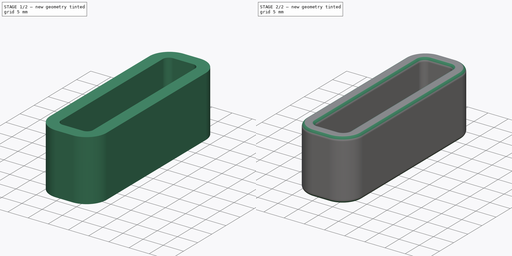
[diagram: build sequence overview — one tinted view per stage of 2, left to right]
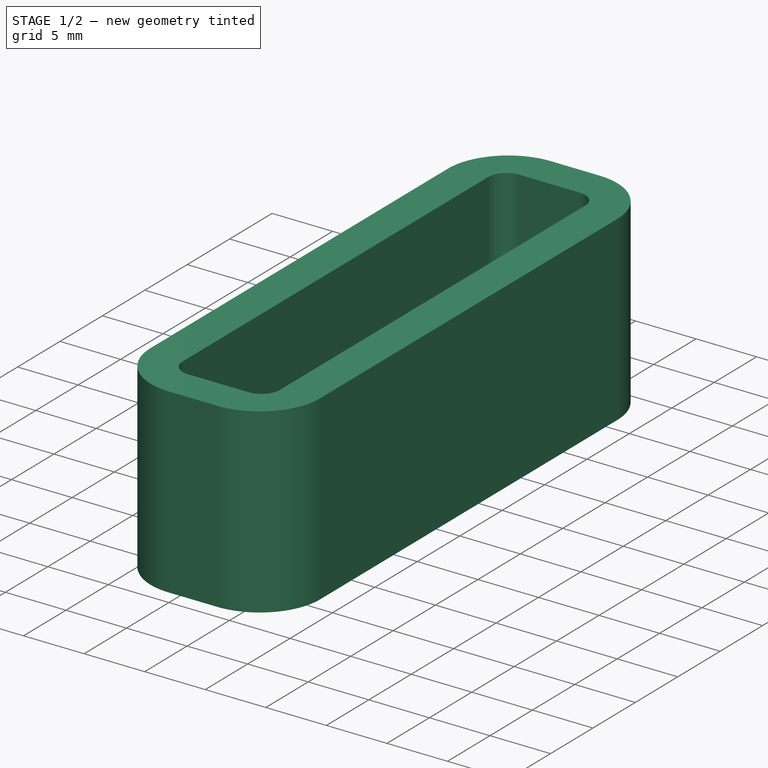
[diagram: stage 1 of 2 — iso view after this stage's code; geometry added in this stage tinted green]
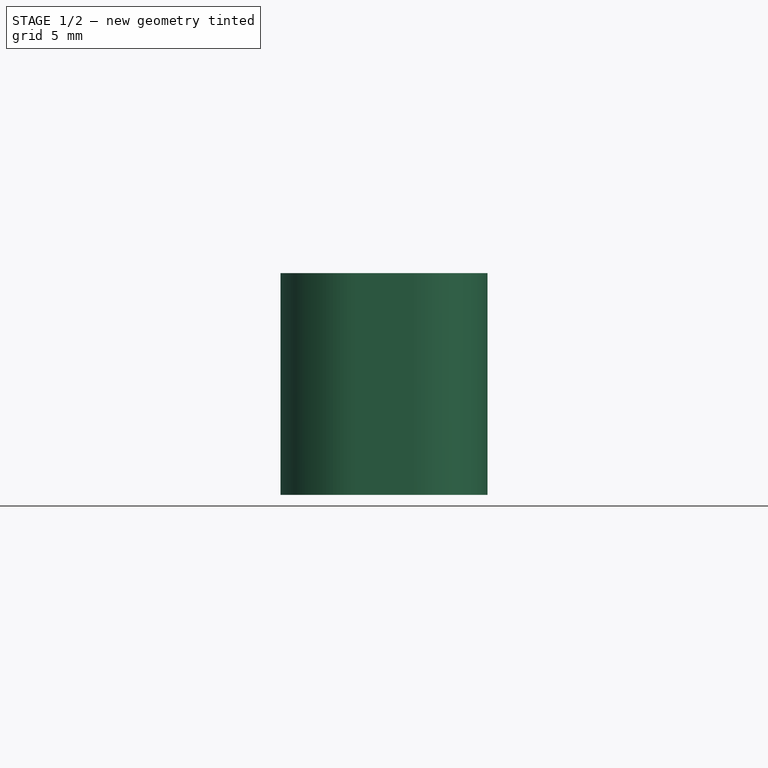
[diagram: stage 1 of 2 — front view after this stage's code; geometry added in this stage tinted green]
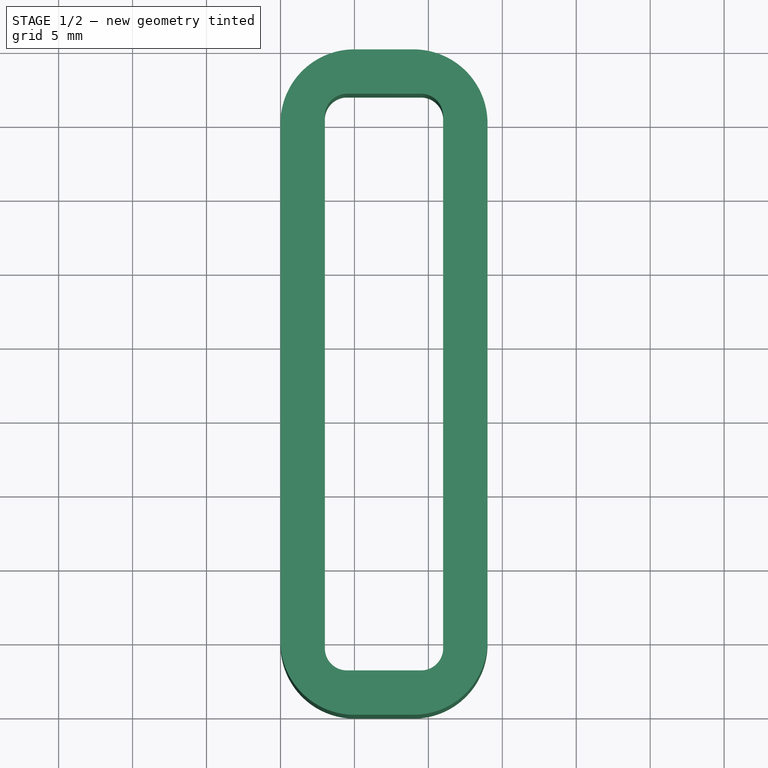
[diagram: stage 1 of 2 — top view after this stage's code; geometry added in this stage tinted green]
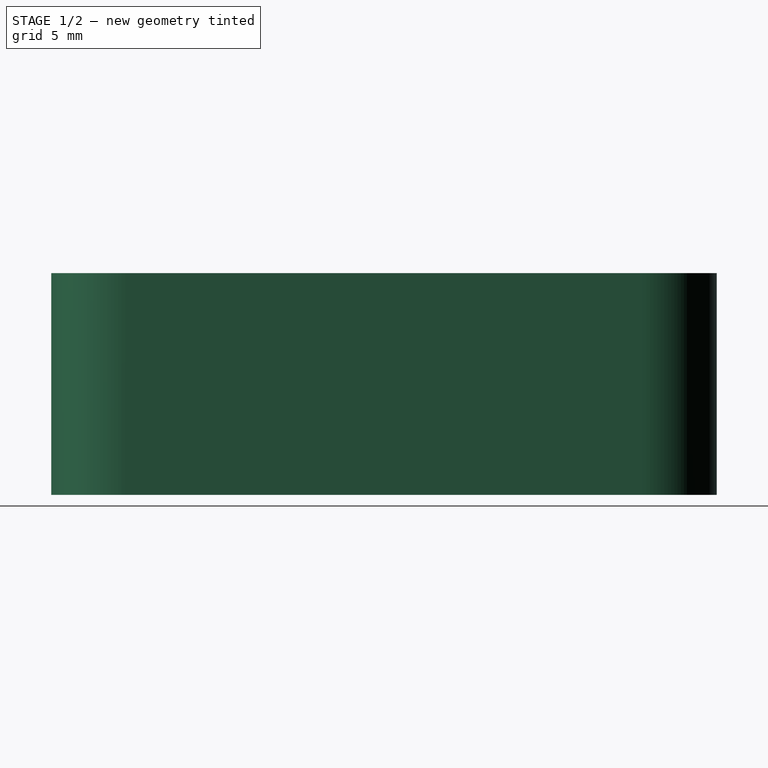
[diagram: stage 1 of 2 — right view after this stage's code; geometry added in this stage tinted green]
FCSTD DOCUMENT  (FreeCAD 1.0RUnknown)
Label: Belt-holder
License: All rights reserved
LicenseURL: https://en.wikipedia.org/wiki/All_rights_reserved
objects: Sketcher::SketchObject×1, PartDesign::Pad×1, PartDesign::Fillet×1, PartDesign::Body×1
note: 9 computed .brp shape members not serialized (recipe doc carries the construction recipe); baked Part::Feature solids carry a one-line shape summary decoded from their .brp

FEATURE [Sketcher::SketchObject] Sketch
  ArcFitTolerance = 1e-06
  AttachmentSupport = -> [XY_Plane]
  FullyConstrained = true
  MakeInternals = false
  MapMode = 5
  sketch-geometry (24):
    g0: LineSegment StartX=5 StartY=0 StartZ=0 EndX=9 EndY=0 EndZ=0
    g1: LineSegment StartX=14 StartY=5 StartZ=0 EndX=14 EndY=40 EndZ=0
    g2: LineSegment StartX=9 StartY=45 StartZ=0 EndX=5 EndY=45 EndZ=0
    g3: LineSegment StartX=0 StartY=40 StartZ=0 EndX=0 EndY=5 EndZ=0
    g4: LineSegment StartX=4.5 StartY=3 StartZ=0 EndX=9.5 EndY=3 EndZ=0
    g5: LineSegment StartX=11 StartY=4.5 StartZ=0 EndX=11 EndY=40.5 EndZ=0
    g6: LineSegment StartX=9.5 StartY=42 StartZ=0 EndX=4.5 EndY=42 EndZ=0
    g7: LineSegment StartX=3 StartY=40.5 StartZ=0 EndX=3 EndY=4.5 EndZ=0
    g8: ArcOfCircle CenterX=5 CenterY=40 CenterZ=0 NormalX=0 NormalY=0 NormalZ=1 AngleXU=0 Radius=5 StartAngle=1.5708 EndAngle=3.14159
    g9: GeomPoint [constr] X=0 Y=45 Z=0
    g10: ArcOfCircle CenterX=9 CenterY=40 CenterZ=0 NormalX=0 NormalY=0 NormalZ=1 AngleXU=0 Radius=5 StartAngle=1e-16 EndAngle=1.5708
    g11: GeomPoint [constr] X=14 Y=45 Z=0
    g12: ArcOfCircle CenterX=9.5 CenterY=40.5 CenterZ=0 NormalX=0 NormalY=0 NormalZ=1 AngleXU=0 Radius=1.5 StartAngle=-9e-16 EndAngle=1.5708
    g13: GeomPoint [constr] X=11 Y=42 Z=0
    g14: ArcOfCircle CenterX=4.5 CenterY=40.5 CenterZ=0 NormalX=0 NormalY=0 NormalZ=1 AngleXU=0 Radius=1.5 StartAngle=1.5708 EndAngle=3.14159
    g15: GeomPoint [constr] X=3 Y=42 Z=0
    g16: ArcOfCircle CenterX=4.5 CenterY=4.5 CenterZ=0 NormalX=0 NormalY=0 NormalZ=1 AngleXU=0 Radius=1.5 StartAngle=3.14159 EndAngle=4.71239
    g17: GeomPoint [constr] X=3 Y=3 Z=0
    g18: ArcOfCircle CenterX=9.5 CenterY=4.5 CenterZ=0 NormalX=0 NormalY=0 NormalZ=1 AngleXU=0 Radius=1.5 StartAngle=4.71239 EndAngle=6.28319
    g19: GeomPoint [constr] X=11 Y=3 Z=0
    g20: ArcOfCircle CenterX=5 CenterY=5 CenterZ=0 NormalX=0 NormalY=0 NormalZ=1 AngleXU=0 Radius=5 StartAngle=3.14159 EndAngle=4.71239
    g21: GeomPoint [constr] X=0 Y=0 Z=0
    g22: ArcOfCircle CenterX=9 CenterY=5 CenterZ=0 NormalX=0 NormalY=0 NormalZ=1 AngleXU=0 Radius=5 StartAngle=4.71239 EndAngle=6.28319
    g23: GeomPoint [constr] X=14 Y=0 Z=0
  constraints (55):
    c: Horizontal(g0)
    c: Horizontal(g2)
    c: Vertical(g1)
    c: Vertical(g3)
    c: Coincident(g21,g-1)
    c: Horizontal(g4)
    c: Horizontal(g6)
    c: Vertical(g5)
    c: Vertical(g7)
    c: DistanceX(g17,g19) = 8
    c: DistanceY(g17,g15) = 39
    c: Distance(g9,g7) = 3
    c: Distance(g19,g1) = 3
    c: Distance(g21,g4) = 3
    c: Distance(g13,g2) = 3
    c: PointOnObject(g9,g3)
    c: PointOnObject(g9,g2)
    c: Tangent(g3,g8) = -1.5708
    c: Tangent(g2,g8) = -1.5708
    c: PointOnObject(g11,g2)
    c: PointOnObject(g11,g1)
    c: Tangent(g2,g10) = -1.5708
    c: Tangent(g1,g10) = -1.5708
    c: PointOnObject(g13,g6)
    c: PointOnObject(g13,g5)
    c: Tangent(g6,g12) = -1.5708
    c: Tangent(g5,g12) = -1.5708
    c: PointOnObject(g15,g7)
    c: PointOnObject(g15,g6)
    c: Tangent(g7,g14) = -1.5708
    c: Tangent(g6,g14) = -1.5708
    c: PointOnObject(g17,g7)
    c: PointOnObject(g17,g4)
    c: Tangent(g7,g16) = -1.5708
    c: Tangent(g4,g16) = -1.5708
    c: PointOnObject(g19,g5)
    c: PointOnObject(g19,g4)
    c: Tangent(g5,g18) = -1.5708
    c: Tangent(g4,g18) = -1.5708
    c: PointOnObject(g21,g3)
    c: PointOnObject(g21,g0)
    c: Tangent(g3,g20) = -1.5708
    c: Tangent(g0,g20) = -1.5708
    c: Equal(g14,g12)
    c: Equal(g12,g18)
    c: Equal(g18,g16)
    c: Radius(g18) = 1.5
    c: PointOnObject(g23,g1)
    c: PointOnObject(g23,g0)
    c: Tangent(g1,g22) = -1.5708
    c: Tangent(g0,g22) = -1.5708
    c: Equal(g8,g10)
    c: Equal(g10,g22)
    c: Equal(g22,g20)
    c: Radius(g10) = 5
FEATURE [PartDesign::Pad] Pad
  Direction = (0,0,1)
  Length = 15
  Length2 = 10
  Profile = -> Sketch
  ReferenceAxis = -> Sketch [N_Axis]
  Refine = true
  Suppressed = false
  Type = 0
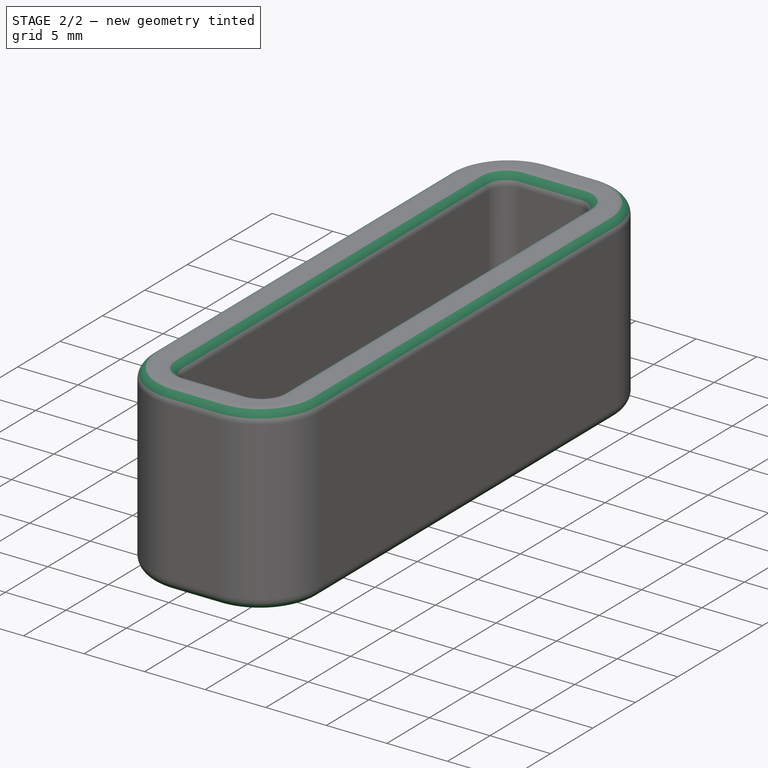
[diagram: stage 2 of 2 — iso view after this stage's code; geometry added in this stage tinted green]
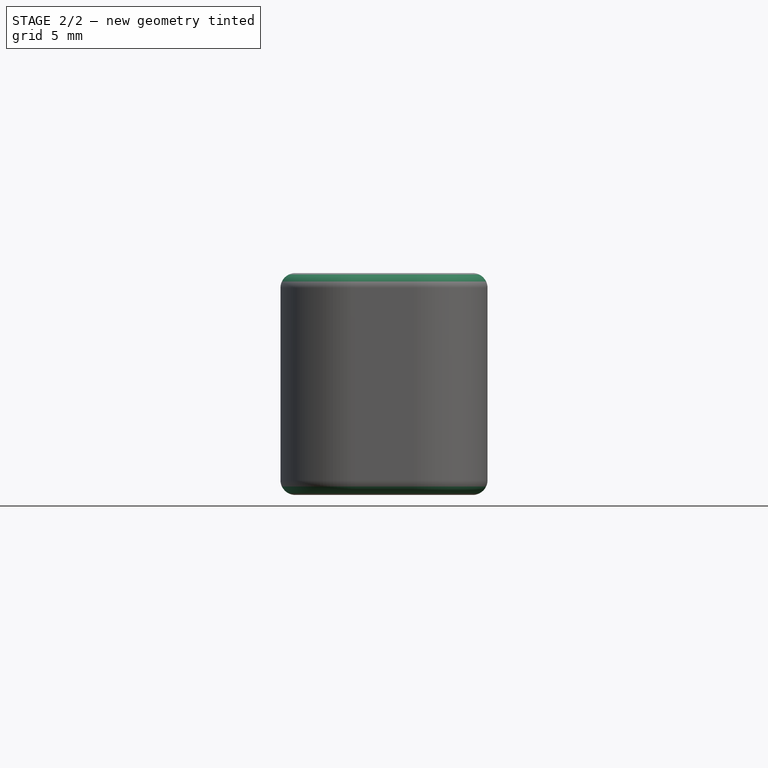
[diagram: stage 2 of 2 — front view after this stage's code; geometry added in this stage tinted green]
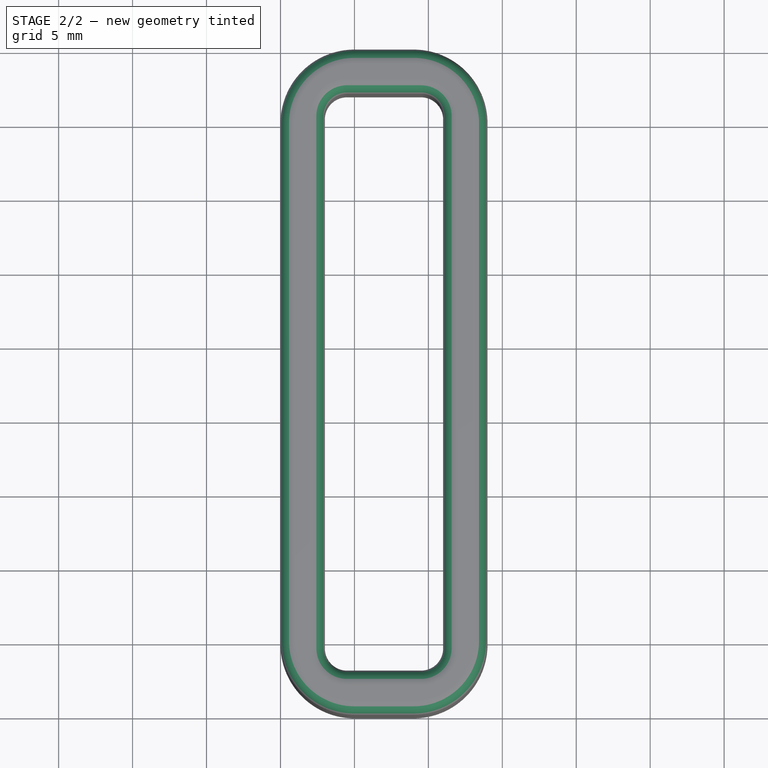
[diagram: stage 2 of 2 — top view after this stage's code; geometry added in this stage tinted green]
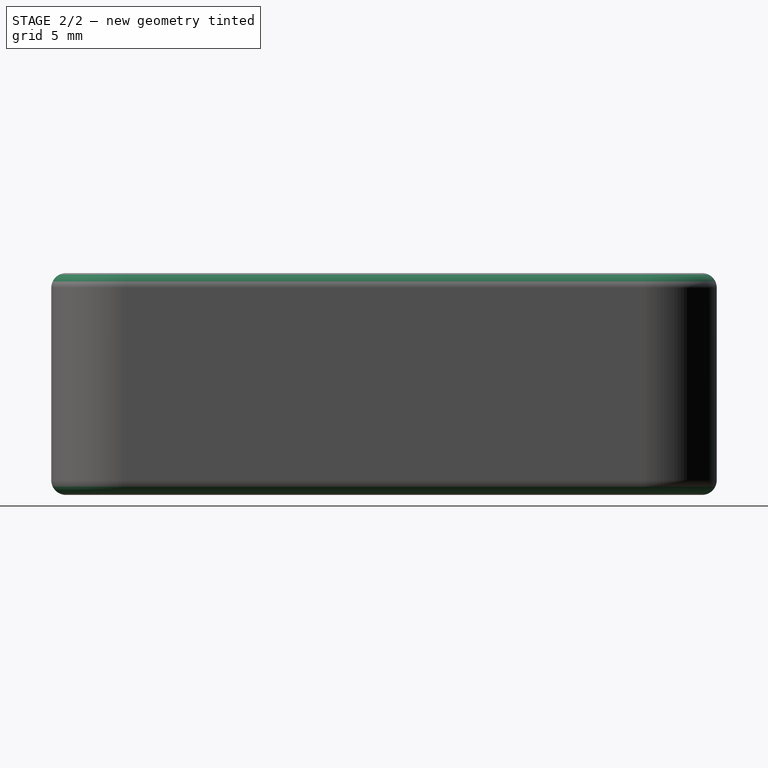
[diagram: stage 2 of 2 — right view after this stage's code; geometry added in this stage tinted green]
FEATURE [PartDesign::Fillet] Fillet
  Base = -> Pad [Edge34,Edge10,Edge9,Edge33]
  BaseFeature = -> Pad
  Radius = 1
  Refine = true
  SupportTransform = false
  Suppressed = false
  UseAllEdges = false
FEATURE [PartDesign::Body] Body
  AllowCompound = false
  Group = -> [Sketch,Pad,Fillet]
  Origin = -> Origin
  Tip = -> Fillet
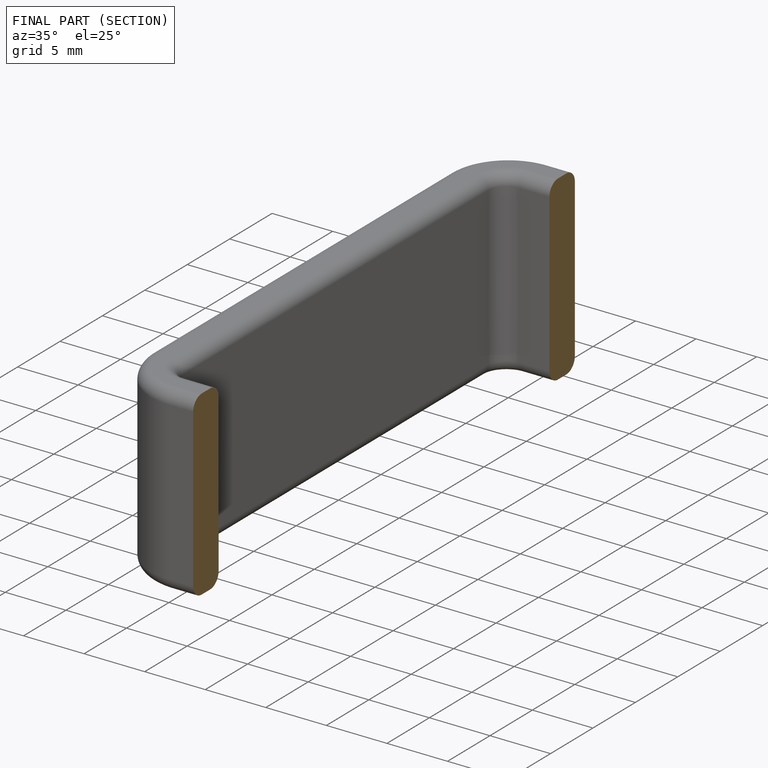
[diagram: finished part — half-section view (interior)]
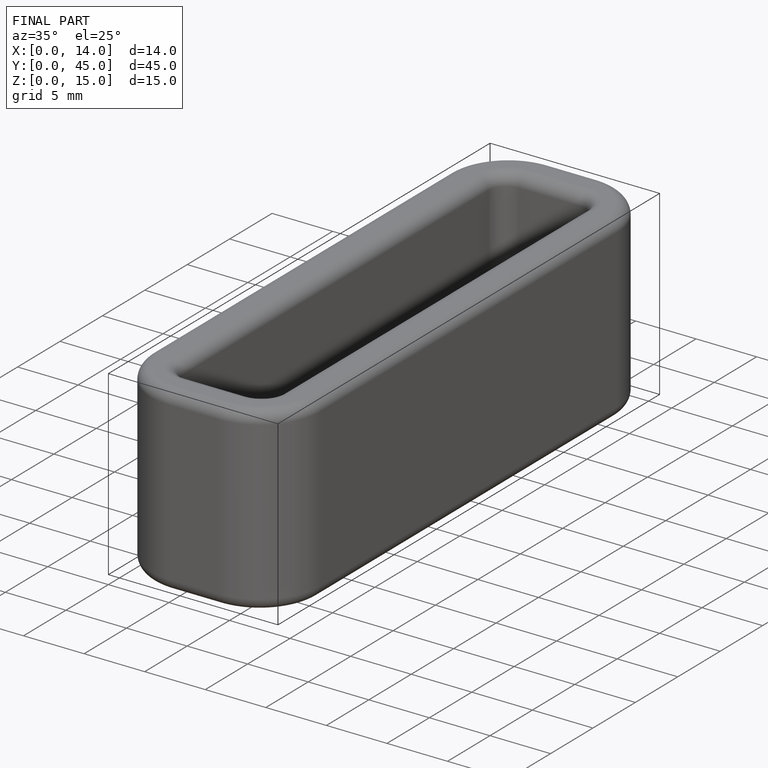
[diagram: finished part — iso view with bounding-box wireframe]
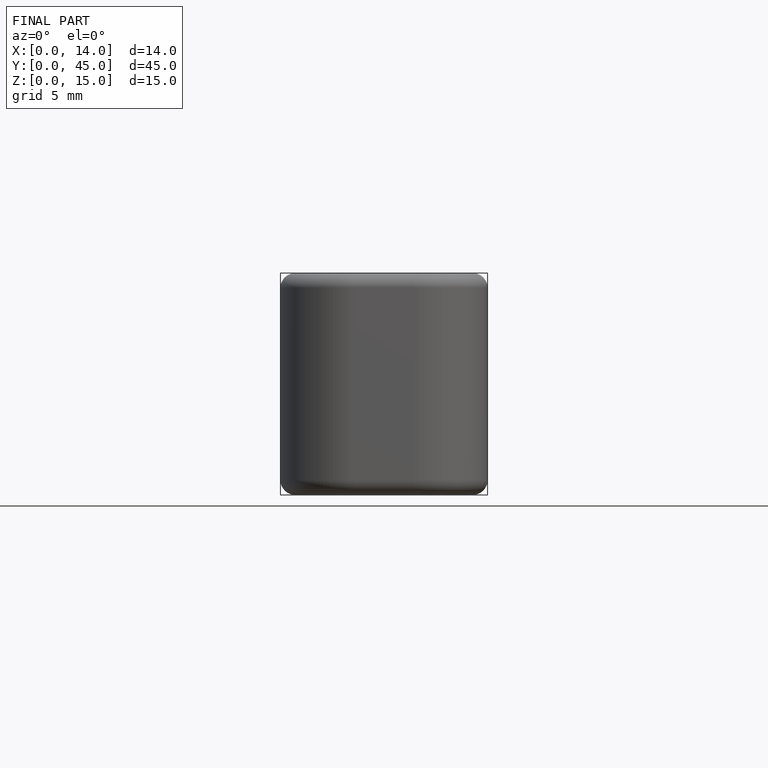
[diagram: finished part — front view with bounding-box wireframe]
